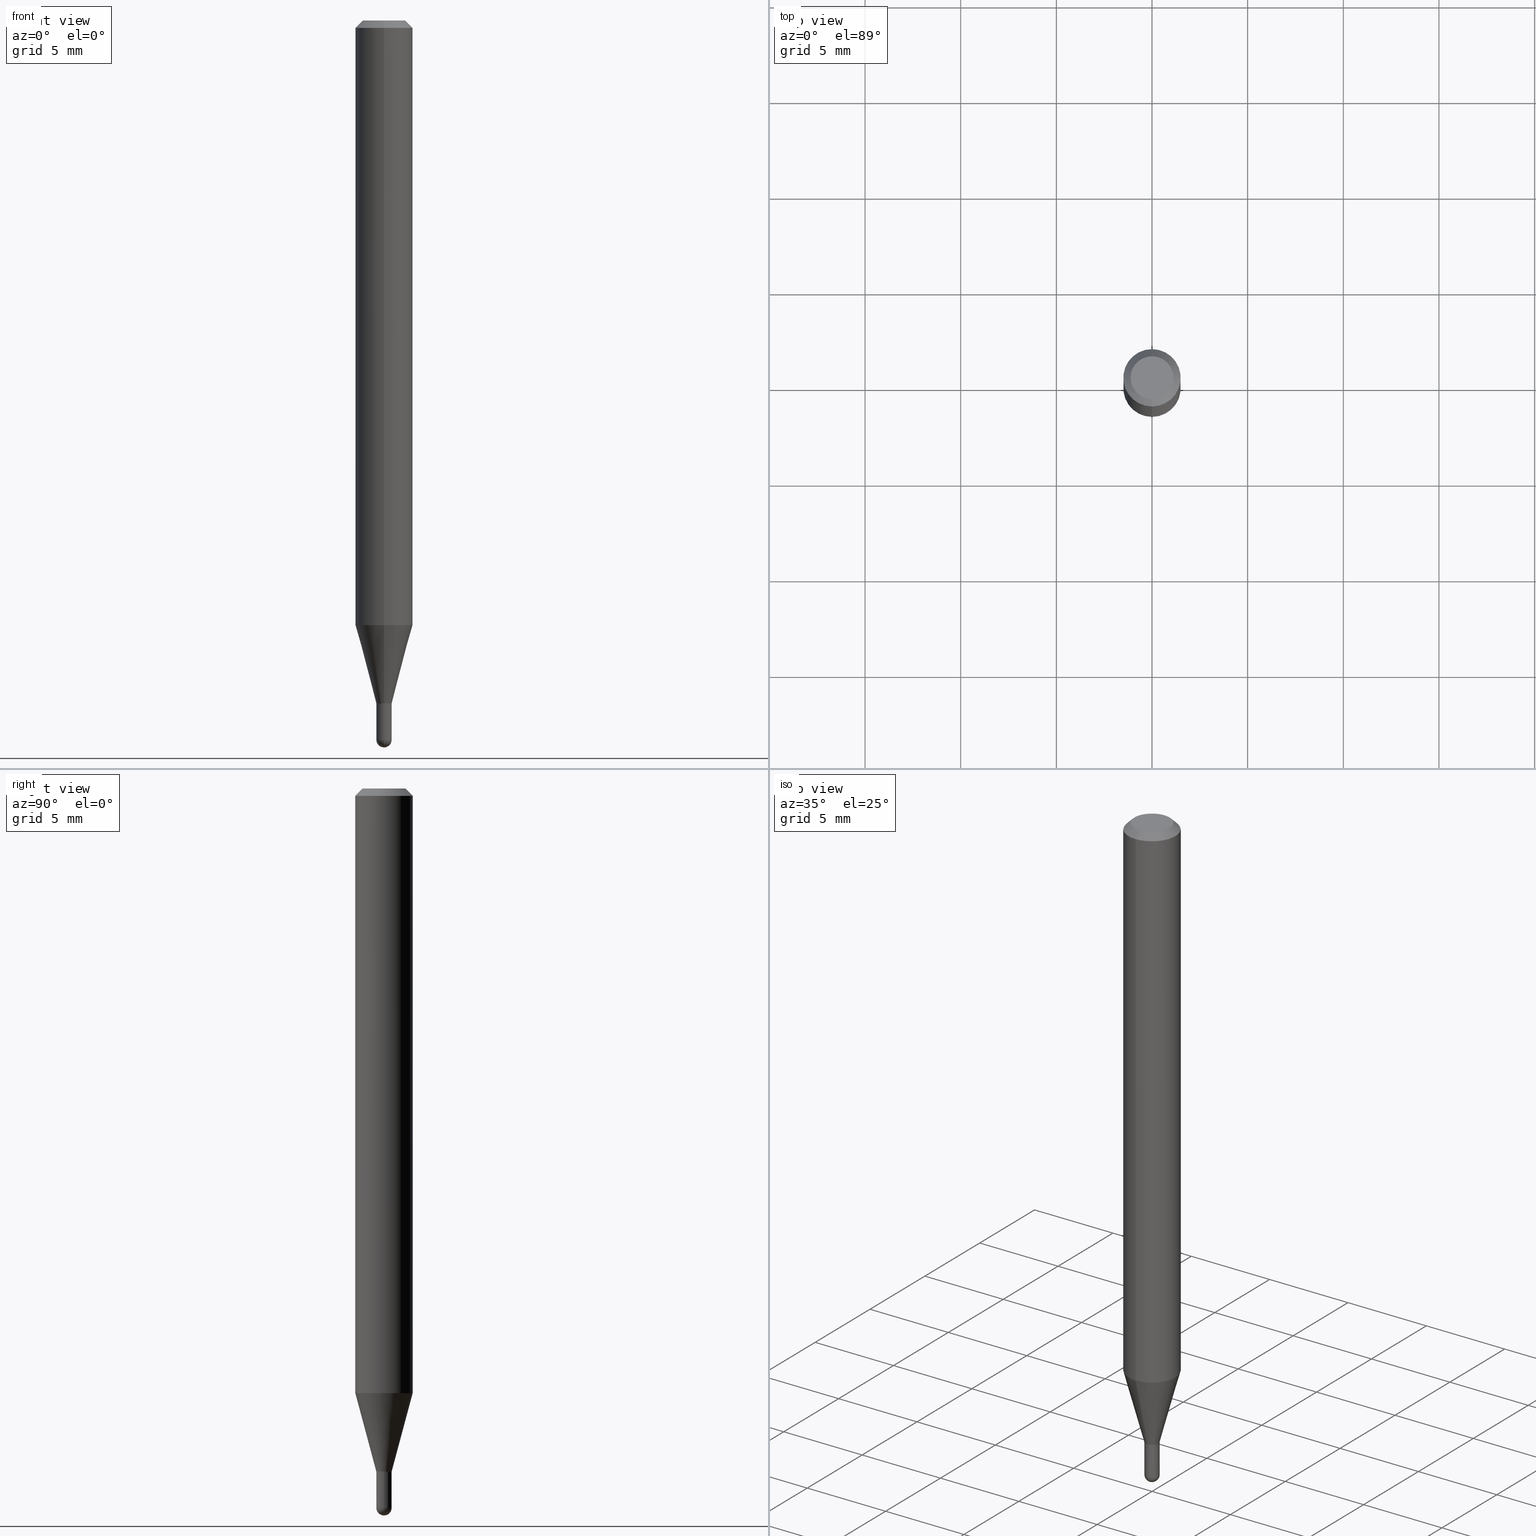
[diagram: canonical four-view strip — front | top / right | iso, engineering-drawing reading convention]
A machine part, canonical four-view strip (front | top / right | iso — engineering-drawing reading convention). The complete STEP part file that produces these views, byte-faithful:
ISO-10303-21;
HEADER;
FILE_DESCRIPTION (( 'STEP AP203' ),
    '1' );
FILE_NAME ('05015.STEP',
    '2024-03-08T20:47:11',
    ( '' ),
    ( '' ),
    'SwSTEP 2.0',
    'SolidWorks 2023',
    '' );
FILE_SCHEMA (( 'CONFIG_CONTROL_DESIGN' ));
ENDSEC;

DATA;
#1 = AXIS2_PLACEMENT_3D ( 'NONE', #83, #476, #242 ) ;
#2 = DIRECTION ( 'NONE',  ( -2.445466752382438032E-29, 3.491484280005505170E-15, 1.000000000000000000 ) ) ;
#3 =( GEOMETRIC_REPRESENTATION_CONTEXT ( 3 ) GLOBAL_UNCERTAINTY_ASSIGNED_CONTEXT ( ( #366 ) ) GLOBAL_UNIT_ASSIGNED_CONTEXT ( ( #217, #403, #254 ) ) REPRESENTATION_CONTEXT ( 'NONE', 'WORKASPACE' ) );
#4 = DIRECTION ( 'NONE',  ( -6.982962677686265922E-15, -1.000000000000000000, 0.000000000000000000 ) ) ;
#5 = EDGE_CURVE ( 'NONE', #151, #24, #291, .T. ) ;
#6 = ORIENTED_EDGE ( 'NONE', *, *, #46, .F. ) ;
#7 = PRODUCT ( '05015', '05015', '', ( #58 ) ) ;
#8 = ADVANCED_FACE ( 'NONE', ( #79 ), #278, .F. ) ;
#9 = EDGE_LOOP ( 'NONE', ( #344, #272, #6, #382 ) ) ;
#10 = AXIS2_PLACEMENT_3D ( 'NONE', #398, #441, #200 ) ;
#11 = AXIS2_PLACEMENT_3D ( 'NONE', #389, #421, #228 ) ;
#12 = DIRECTION ( 'NONE',  ( -2.445468806185136597E-29, 3.491481338843145583E-15, 1.000000000000000000 ) ) ;
#13 = APPLICATION_PROTOCOL_DEFINITION ( 'international standard', 'config_control_design', 1994, #467 ) ;
#14 = DIRECTION ( 'NONE',  ( -2.445466752382438312E-29, 3.491484280005505565E-15, 1.000000000000000000 ) ) ;
#15 = EDGE_CURVE ( 'NONE', #334, #320, #116, .T. ) ;
#16 = PERSON_AND_ORGANIZATION_ROLE ( 'design_owner' ) ;
#17 = ORIENTED_EDGE ( 'NONE', *, *, #36, .F. ) ;
#18 = FACE_OUTER_BOUND ( 'NONE', #208, .T. ) ;
#19 = DIRECTION ( 'NONE',  ( -6.982962677686265922E-15, -1.000000000000000000, 0.000000000000000000 ) ) ;
#20 = CONICAL_SURFACE ( 'NONE', #305, 0.05904999999999999832, 0.7853981633974483900 ) ;
#21 = SECURITY_CLASSIFICATION ( '', '', #426 ) ;
#22 = DIRECTION ( 'NONE',  ( 1.839019923739650802E-15, 0.2588190451025320638, 0.9659258262890650926 ) ) ;
#23 = DIRECTION ( 'NONE',  ( -2.445468806185136597E-29, 3.491481338843145583E-15, 1.000000000000000000 ) ) ;
#24 = VERTEX_POINT ( 'NONE', #240 ) ;
#25 = CC_DESIGN_DATE_AND_TIME_ASSIGNMENT ( #211, #91, ( #201 ) ) ;
#26 = DIRECTION ( 'NONE',  ( -6.982962677686265133E-15, -1.000000000000000000, 3.491484280005504776E-15 ) ) ;
#27 = DIRECTION ( 'NONE',  ( 1.000000000000000000, -6.982962677686284854E-15, 0.000000000000000000 ) ) ;
#28 = CARTESIAN_POINT ( 'NONE',  ( 0.01575000000000000358, -5.141118984413060264E-15, -1.480350000000000055 ) ) ;
#29 = CIRCLE ( 'NONE', #458, 0.04404999999999999888 ) ;
#30 = DIRECTION ( 'NONE',  ( -6.982962677686265922E-15, -1.000000000000000000, 3.505890868245046092E-15 ) ) ;
#31 = COORDINATED_UNIVERSAL_TIME_OFFSET ( 5, 0, .BEHIND. ) ;
#32 = EDGE_LOOP ( 'NONE', ( #247, #123, #141, #45 ) ) ;
#33 = DIRECTION ( 'NONE',  ( -6.982962677686265922E-15, -1.000000000000000000, 0.000000000000000000 ) ) ;
#34 = VERTEX_POINT ( 'NONE', #44 ) ;
#35 = FACE_OUTER_BOUND ( 'NONE', #185, .T. ) ;
#36 = EDGE_CURVE ( 'NONE', #98, #224, #473, .T. ) ;
#37 = AXIS2_PLACEMENT_3D ( 'NONE', #239, #236, #356 ) ;
#38 = FACE_OUTER_BOUND ( 'NONE', #61, .T. ) ;
#39 = VECTOR ( 'NONE', #502, 39.37007874015748143 ) ;
#40 = PLANE ( 'NONE',  #139 ) ;
#41 = ORIENTED_EDGE ( 'NONE', *, *, #248, .F. ) ;
#42 = ORIENTED_EDGE ( 'NONE', *, *, #430, .T. ) ;
#43 = VECTOR ( 'NONE', #424, 39.37007874015748143 ) ;
#44 = CARTESIAN_POINT ( 'NONE',  ( -9.636488495203536860E-17, -0.01380000000000485873, -1.413100000000000023 ) ) ;
#45 = ORIENTED_EDGE ( 'NONE', *, *, #56, .F. ) ;
#46 = EDGE_CURVE ( 'NONE', #214, #295, #451, .T. ) ;
#47 = EDGE_LOOP ( 'NONE', ( #41, #311, #167, #106 ) ) ;
#48 = CIRCLE ( 'NONE', #138, 0.01575000000000000358 ) ;
#49 = APPROVAL_DATE_TIME ( #287, #105 ) ;
#50 = AXIS2_PLACEMENT_3D ( 'NONE', #89, #488, #294 ) ;
#51 = FACE_OUTER_BOUND ( 'NONE', #154, .T. ) ;
#52 = CARTESIAN_POINT ( 'NONE',  ( -4.123439461173739834E-16, -0.05904999999999999832, 2.061721467343250858E-16 ) ) ;
#53 = APPROVAL_STATUS ( 'not_yet_approved' ) ;
#54 = CYLINDRICAL_SURFACE ( 'NONE', #230, 0.01380000000000006048 ) ;
#55 = ORIENTED_EDGE ( 'NONE', *, *, #415, .F. ) ;
#56 = EDGE_CURVE ( 'NONE', #34, #144, #468, .T. ) ;
#57 = DIRECTION ( 'NONE',  ( -2.445466752382438032E-29, 3.491484280005505170E-15, 1.000000000000000000 ) ) ;
#58 = MECHANICAL_CONTEXT ( 'NONE', #467, 'mechanical' ) ;
#59 = ORIENTED_EDGE ( 'NONE', *, *, #408, .F. ) ;
#60 = CARTESIAN_POINT ( 'NONE',  ( -4.051124067684085231E-16, -0.05905000000000005383, -0.01499999999999987454 ) ) ;
#61 = EDGE_LOOP ( 'NONE', ( #149, #67, #396, #302 ) ) ;
#62 = EDGE_CURVE ( 'NONE', #182, #34, #328, .T. ) ;
#63 = CARTESIAN_POINT ( 'NONE',  ( 4.195754854663697655E-16, 0.05904999999999994975, -0.01500000000000028741 ) ) ;
#64 = AXIS2_PLACEMENT_3D ( 'NONE', #330, #12, #477 ) ;
#65 = FACE_OUTER_BOUND ( 'NONE', #342, .T. ) ;
#66 = CC_DESIGN_PERSON_AND_ORGANIZATION_ASSIGNMENT ( #498, #97, ( #198 ) ) ;
#67 = ORIENTED_EDGE ( 'NONE', *, *, #408, .T. ) ;
#68 = CARTESIAN_POINT ( 'NONE',  ( 4.195754854663694204E-16, 0.05904999999999564764, -1.244224700957513807 ) ) ;
#69 = DATE_AND_TIME ( #72, #506 ) ;
#70 = EDGE_CURVE ( 'NONE', #268, #368, #221, .T. ) ;
#71 = CARTESIAN_POINT ( 'NONE',  ( 3.618802860330709271E-29, -5.170543218665107732E-15, -1.480350000000000055 ) ) ;
#72 = CALENDAR_DATE ( 2024, 8, 3 ) ;
#73 = ORIENTED_EDGE ( 'NONE', *, *, #275, .F. ) ;
#74 = DIRECTION ( 'NONE',  ( -2.445466752382438032E-29, 3.491484280005505170E-15, 1.000000000000000000 ) ) ;
#75 = ORIENTED_EDGE ( 'NONE', *, *, #275, .T. ) ;
#76 = EDGE_CURVE ( 'NONE', #276, #161, #347, .T. ) ;
#77 = CARTESIAN_POINT ( 'NONE',  ( 0.000000000000000000, 0.000000000000000000, 0.000000000000000000 ) ) ;
#78 = EDGE_CURVE ( 'NONE', #24, #151, #29, .T. ) ;
#79 = FACE_OUTER_BOUND ( 'NONE', #32, .T. ) ;
#80 = AXIS2_PLACEMENT_3D ( 'NONE', #445, #372, #481 ) ;
#81 = DIRECTION ( 'NONE',  ( -2.445466752382438312E-29, 3.491484280005505565E-15, 1.000000000000000000 ) ) ;
#82 = EDGE_CURVE ( 'NONE', #224, #327, #317, .T. ) ;
#83 = CARTESIAN_POINT ( 'NONE',  ( 3.620149747236166990E-29, -5.168614399956450325E-15, -1.480350000000000055 ) ) ;
#84 = DIRECTION ( 'NONE',  ( -6.982962677686265922E-15, -1.000000000000000000, 0.000000000000000000 ) ) ;
#85 = CARTESIAN_POINT ( 'NONE',  ( 0.000000000000000000, 0.000000000000000000, 0.000000000000000000 ) ) ;
#86 = ORIENTED_EDGE ( 'NONE', *, *, #349, .F. ) ;
#87 = AXIS2_PLACEMENT_3D ( 'NONE', #145, #453, #187 ) ;
#88 = LINE ( 'NONE', #206, #213 ) ;
#89 = CARTESIAN_POINT ( 'NONE',  ( 3.455199974441146854E-29, -4.933118139219779014E-15, -1.412900000000000045 ) ) ;
#90 = CARTESIAN_POINT ( 'NONE',  ( -9.287340361319278055E-17, -0.01330000000000493461, -1.413400000000000212 ) ) ;
#91 = DATE_TIME_ROLE ( 'creation_date' ) ;
#92 = DIRECTION ( 'NONE',  ( -2.445466752382438032E-29, 3.491484280005505170E-15, 1.000000000000000000 ) ) ;
#93 = LOCAL_TIME ( 15, 47, 11.00000000000000000, #184 ) ;
#94 = CARTESIAN_POINT ( 'NONE',  ( -9.636488495203536860E-17, -0.01380000000000485873, -1.413100000000000023 ) ) ;
#95 = ORIENTED_EDGE ( 'NONE', *, *, #157, .T. ) ;
#96 = DIRECTION ( 'NONE',  ( -2.445466752382438032E-29, 3.491484280005505170E-15, 1.000000000000000000 ) ) ;
#97 = PERSON_AND_ORGANIZATION_ROLE ( 'creator' ) ;
#98 = VERTEX_POINT ( 'NONE', #90 ) ;
#99 = CARTESIAN_POINT ( 'NONE',  ( 4.195754854663390985E-16, 0.05904999999999999832, -2.061721467343250858E-16 ) ) ;
#100 = DATE_TIME_ROLE ( 'classification_date' ) ;
#101 = ORIENTED_EDGE ( 'NONE', *, *, #501, .T. ) ;
#102 = PERSON_AND_ORGANIZATION_ROLE ( 'classification_officer' ) ;
#103 = ORIENTED_EDGE ( 'NONE', *, *, #171, .T. ) ;
#104 = CARTESIAN_POINT ( 'NONE',  ( 0.000000000000000000, 0.000000000000000000, 0.000000000000000000 ) ) ;
#105 = APPROVAL ( #53, 'UNSPECIFIED' ) ;
#106 = ORIENTED_EDGE ( 'NONE', *, *, #252, .F. ) ;
#107 = DIRECTION ( 'NONE',  ( -6.982962677686265922E-15, -1.000000000000000000, 3.491484280005505565E-15 ) ) ;
#108 = ORIENTED_EDGE ( 'NONE', *, *, #56, .T. ) ;
#109 = CIRCLE ( 'NONE', #432, 0.01574999999999998276 ) ;
#110 = CARTESIAN_POINT ( 'NONE',  ( 3.656645550575395810E-29, -5.226498459106215376E-15, -1.496099999999999985 ) ) ;
#111 = DIRECTION ( 'NONE',  ( -2.445468806185136597E-29, 3.491481338843145583E-15, 1.000000000000000000 ) ) ;
#112 = EDGE_CURVE ( 'NONE', #24, #320, #88, .T. ) ;
#113 = ORIENTED_EDGE ( 'NONE', *, *, #70, .F. ) ;
#114 = CC_DESIGN_PERSON_AND_ORGANIZATION_ASSIGNMENT ( #455, #270, ( #198 ) ) ;
#115 = DIRECTION ( 'NONE',  ( -2.445466752382438032E-29, 3.491484280005505170E-15, 1.000000000000000000 ) ) ;
#116 = CIRCLE ( 'NONE', #189, 0.05904999999999999832 ) ;
#117 = ORIENTED_EDGE ( 'NONE', *, *, #5, .T. ) ;
#118 = ADVANCED_FACE ( 'NONE', ( #336 ), #251, .F. ) ;
#119 = AXIS2_PLACEMENT_3D ( 'NONE', #510, #23, #27 ) ;
#120 = ORIENTED_EDGE ( 'NONE', *, *, #112, .T. ) ;
#121 = EDGE_CURVE ( 'NONE', #214, #268, #409, .T. ) ;
#122 = LINE ( 'NONE', #52, #359 ) ;
#123 = ORIENTED_EDGE ( 'NONE', *, *, #186, .T. ) ;
#124 = DIRECTION ( 'NONE',  ( -2.445468806185136597E-29, 3.491481338843145583E-15, 1.000000000000000000 ) ) ;
#125 = AXIS2_PLACEMENT_3D ( 'NONE', #487, #57, #84 ) ;
#126 = COORDINATED_UNIVERSAL_TIME_OFFSET ( 5, 0, .BEHIND. ) ;
#127 = CC_DESIGN_APPROVAL ( #105, ( #201 ) ) ;
#128 = FACE_OUTER_BOUND ( 'NONE', #460, .T. ) ;
#129 = PERSON_AND_ORGANIZATION_ROLE ( 'creator' ) ;
#130 = DIRECTION ( 'NONE',  ( 5.024295867788190974E-15, 0.7071067811865681119, 0.7071067811865270336 ) ) ;
#131 = DIRECTION ( 'NONE',  ( -6.982962677686265133E-15, -1.000000000000000000, 0.000000000000000000 ) ) ;
#132 = CARTESIAN_POINT ( 'NONE',  ( 3.042710138684580835E-29, -4.344190984187709840E-15, -1.244224700957513585 ) ) ;
#133 = AXIS2_PLACEMENT_3D ( 'NONE', #158, #111, #318 ) ;
#134 = ADVANCED_FACE ( 'NONE', ( #51 ), #364, .T. ) ;
#135 = LINE ( 'NONE', #246, #238 ) ;
#136 = ORIENTED_EDGE ( 'NONE', *, *, #121, .F. ) ;
#137 = AXIS2_PLACEMENT_3D ( 'NONE', #132, #92, #172 ) ;
#138 = AXIS2_PLACEMENT_3D ( 'NONE', #216, #448, #168 ) ;
#139 = AXIS2_PLACEMENT_3D ( 'NONE', #466, #351, #194 ) ;
#140 = LINE ( 'NONE', #99, #39 ) ;
#141 = ORIENTED_EDGE ( 'NONE', *, *, #479, .T. ) ;
#142 = DIRECTION ( 'NONE',  ( 1.000000000000000000, -6.982962677686286432E-15, 0.000000000000000000 ) ) ;
#143 = SHAPE_DEFINITION_REPRESENTATION ( #471, #322 ) ;
#144 = VERTEX_POINT ( 'NONE', #205 ) ;
#145 = CARTESIAN_POINT ( 'NONE',  ( 3.455689067791622925E-29, -4.933816436075779894E-15, -1.413100000000000023 ) ) ;
#146 = ORIENTED_EDGE ( 'NONE', *, *, #76, .T. ) ;
#147 = AXIS2_PLACEMENT_3D ( 'NONE', #265, #223, #142 ) ;
#148 = DIRECTION ( 'NONE',  ( -6.982962677686265922E-15, -1.000000000000000000, 0.000000000000000000 ) ) ;
#149 = ORIENTED_EDGE ( 'NONE', *, *, #5, .F. ) ;
#150 = CARTESIAN_POINT ( 'NONE',  ( 3.668200128573676386E-31, -5.237226420008286401E-17, -0.01500000000000008098 ) ) ;
#151 = VERTEX_POINT ( 'NONE', #285 ) ;
#152 = CARTESIAN_POINT ( 'NONE',  ( 0.01575000000000000011, -1.099816621735586938E-16, 7.679978421878599434E-31 ) ) ;
#153 = CARTESIAN_POINT ( 'NONE',  ( 3.456422707817337873E-29, -4.934863881359783185E-15, -1.413400000000000212 ) ) ;
#154 = EDGE_LOOP ( 'NONE', ( #42, #499, #290, #55, #146 ) ) ;
#155 = APPROVAL ( #267, 'UNSPECIFIED' ) ;
#156 = DIRECTION ( 'NONE',  ( -6.982962677686265133E-15, -1.000000000000000000, 3.491484280005504776E-15 ) ) ;
#157 = EDGE_CURVE ( 'NONE', #295, #276, #48, .T. ) ;
#158 = CARTESIAN_POINT ( 'NONE',  ( 3.620149747236166990E-29, -5.168614399956450325E-15, -1.480350000000000055 ) ) ;
#159 = AXIS2_PLACEMENT_3D ( 'NONE', #153, #115, #4 ) ;
#160 = ADVANCED_FACE ( 'NONE', ( #405 ), #54, .F. ) ;
#161 = VERTEX_POINT ( 'NONE', #362 ) ;
#162 = CC_DESIGN_SECURITY_CLASSIFICATION ( #21, ( #198 ) ) ;
#163 = CARTESIAN_POINT ( 'NONE',  ( 3.456422707817337873E-29, -4.934863881359783185E-15, -1.413400000000000212 ) ) ;
#164 = PERSON_AND_ORGANIZATION ( #298, #370 ) ;
#165 = DIRECTION ( 'NONE',  ( 2.445466752382437471E-29, -3.491484280005505565E-15, -1.000000000000000000 ) ) ;
#166 = COORDINATED_UNIVERSAL_TIME_OFFSET ( 5, 0, .BEHIND. ) ;
#167 = ORIENTED_EDGE ( 'NONE', *, *, #266, .T. ) ;
#168 = DIRECTION ( 'NONE',  ( 1.000000000000000000, -6.982962677686284854E-15, 0.000000000000000000 ) ) ;
#169 = DIRECTION ( 'NONE',  ( 0.000000000000000000, 0.000000000000000000, 1.000000000000000000 ) ) ;
#170 = CC_DESIGN_APPROVAL ( #155, ( #198 ) ) ;
#171 = EDGE_CURVE ( 'NONE', #258, #334, #122, .T. ) ;
#172 = DIRECTION ( 'NONE',  ( -6.982962677686265922E-15, -1.000000000000000000, 4.626330217890369336E-15 ) ) ;
#173 = FACE_OUTER_BOUND ( 'NONE', #9, .T. ) ;
#174 = ORIENTED_EDGE ( 'NONE', *, *, #82, .T. ) ;
#175 = DIRECTION ( 'NONE',  ( -2.445466752382438312E-29, 3.491484280005505565E-15, 1.000000000000000000 ) ) ;
#176 = LENGTH_MEASURE_WITH_UNIT ( LENGTH_MEASURE( 0.02539999999999999897 ), #491 );
#177 = CYLINDRICAL_SURFACE ( 'NONE', #404, 0.05904999999999999832 ) ;
#178 = VECTOR ( 'NONE', #130, 39.37007874015748143 ) ;
#179 = CIRCLE ( 'NONE', #338, 0.05904999999999999832 ) ;
#180 = DIRECTION ( 'NONE',  ( -2.445466752382438032E-29, 3.491484280005505170E-15, 1.000000000000000000 ) ) ;
#181 = PERSON_AND_ORGANIZATION ( #298, #370 ) ;
#182 = VERTEX_POINT ( 'NONE', #323 ) ;
#183 = CYLINDRICAL_SURFACE ( 'NONE', #438, 0.05904999999999999832 ) ;
#184 = COORDINATED_UNIVERSAL_TIME_OFFSET ( 5, 0, .BEHIND. ) ;
#185 = EDGE_LOOP ( 'NONE', ( #86, #234, #103, #73 ) ) ;
#186 = EDGE_CURVE ( 'NONE', #182, #327, #452, .T. ) ;
#187 = DIRECTION ( 'NONE',  ( -6.982962677686265922E-15, -1.000000000000000000, 0.000000000000000000 ) ) ;
#188 = EDGE_LOOP ( 'NONE', ( #59, #220, #120, #75 ) ) ;
#189 = AXIS2_PLACEMENT_3D ( 'NONE', #435, #352, #355 ) ;
#190 = LOCAL_TIME ( 15, 47, 11.00000000000000000, #126 ) ;
#191 = DIRECTION ( 'NONE',  ( -6.982962677686265922E-15, -1.000000000000000000, 0.000000000000000000 ) ) ;
#192 = PERSON_AND_ORGANIZATION ( #298, #370 ) ;
#193 = ORIENTED_EDGE ( 'NONE', *, *, #415, .T. ) ;
#194 = DIRECTION ( 'NONE',  ( -1.000000000000000000, 6.982962677686265922E-15, -4.876176775795935793E-29 ) ) ;
#195 = ADVANCED_FACE ( 'NONE', ( #18 ), #292, .T. ) ;
#196 = PRODUCT_RELATED_PRODUCT_CATEGORY ( 'detail', '', ( #7 ) ) ;
#197 = CARTESIAN_POINT ( 'NONE',  ( 3.427569078749087191E-29, -4.893660244522552864E-15, -1.401599999999999957 ) ) ;
#198 = PRODUCT_DEFINITION_FORMATION_WITH_SPECIFIED_SOURCE ( 'ANY', '', #7, .NOT_KNOWN. ) ;
#199 = ORIENTED_EDGE ( 'NONE', *, *, #186, .F. ) ;
#200 = DIRECTION ( 'NONE',  ( -6.982962677686265133E-15, -1.000000000000000000, 3.491484280005504776E-15 ) ) ;
#201 = PRODUCT_DEFINITION ( 'UNKNOWN', '', #198, #509 ) ;
#202 = DIRECTION ( 'NONE',  ( 1.000000000000000000, -6.982962677686286432E-15, 0.000000000000000000 ) ) ;
#203 = VECTOR ( 'NONE', #81, 39.37007874015748143 ) ;
#204 = AXIS2_PLACEMENT_3D ( 'NONE', #150, #505, #300 ) ;
#205 = CARTESIAN_POINT ( 'NONE',  ( -9.636488495203762425E-17, -0.01380000000000517792, -1.412900000000000045 ) ) ;
#206 = CARTESIAN_POINT ( 'NONE',  ( 4.123439461173743285E-16, 0.05904999999999994975, -0.01500000000000028741 ) ) ;
#207 = APPLICATION_PROTOCOL_DEFINITION ( 'international standard', 'config_control_design', 1994, #496 ) ;
#208 = EDGE_LOOP ( 'NONE', ( #136, #503, #95, #193, #113 ) ) ;
#209 = CARTESIAN_POINT ( 'NONE',  ( 9.805489753489424308E-17, 0.01380000000000006048, -4.818248306407617745E-17 ) ) ;
#210 = CC_DESIGN_PERSON_AND_ORGANIZATION_ASSIGNMENT ( #478, #129, ( #201 ) ) ;
#211 = DATE_AND_TIME ( #447, #190 ) ;
#212 = CARTESIAN_POINT ( 'NONE',  ( 9.627854069552881185E-17, 0.01329999999999506577, -1.413400000000000212 ) ) ;
#213 = VECTOR ( 'NONE', #444, 39.37007874015748143 ) ;
#214 = VERTEX_POINT ( 'NONE', #486 ) ;
#215 = AXIS2_PLACEMENT_3D ( 'NONE', #250, #365, #19 ) ;
#216 = CARTESIAN_POINT ( 'NONE',  ( 3.620149747236166990E-29, -5.168614399956450325E-15, -1.480350000000000055 ) ) ;
#217 =( CONVERSION_BASED_UNIT ( 'INCH', #176 ) LENGTH_UNIT ( ) NAMED_UNIT ( #500 ) );
#218 = CARTESIAN_POINT ( 'NONE',  ( -4.123439461173736383E-16, -0.05905000000000005383, -0.01499999999999987454 ) ) ;
#219 = PLANE ( 'NONE',  #493 ) ;
#220 = ORIENTED_EDGE ( 'NONE', *, *, #78, .F. ) ;
#221 = CIRCLE ( 'NONE', #437, 0.01575000000000000011 ) ;
#222 = CIRCLE ( 'NONE', #11, 0.01574999999999998276 ) ;
#223 = DIRECTION ( 'NONE',  ( -2.445468806185136597E-29, 3.491481338843145583E-15, 1.000000000000000000 ) ) ;
#224 = VERTEX_POINT ( 'NONE', #212 ) ;
#225 = DIRECTION ( 'NONE',  ( -2.445466752382438032E-29, 3.491484280005505170E-15, 1.000000000000000000 ) ) ;
#226 = COORDINATED_UNIVERSAL_TIME_OFFSET ( 5, 0, .BEHIND. ) ;
#227 = ORIENTED_EDGE ( 'NONE', *, *, #266, .F. ) ;
#228 = DIRECTION ( 'NONE',  ( 7.105427357601000281E-15, 1.000000000000000000, 0.000000000000000000 ) ) ;
#229 = ORIENTED_EDGE ( 'NONE', *, *, #171, .F. ) ;
#230 = AXIS2_PLACEMENT_3D ( 'NONE', #367, #325, #26 ) ;
#231 = ADVANCED_FACE ( 'NONE', ( #128 ), #483, .T. ) ;
#232 = CONICAL_SURFACE ( 'NONE', #204, 0.05904999999999999832, 0.7853981633974483900 ) ;
#233 = FACE_OUTER_BOUND ( 'NONE', #315, .T. ) ;
#234 = ORIENTED_EDGE ( 'NONE', *, *, #252, .T. ) ;
#235 = ORIENTED_EDGE ( 'NONE', *, *, #299, .F. ) ;
#236 = DIRECTION ( 'NONE',  ( -2.445466752382438032E-29, 3.491484280005505170E-15, 1.000000000000000000 ) ) ;
#237 = AXIS2_PLACEMENT_3D ( 'NONE', #77, #274, #434 ) ;
#238 = VECTOR ( 'NONE', #333, 39.37007874015748143 ) ;
#239 = CARTESIAN_POINT ( 'NONE',  ( 3.455689067791622925E-29, -4.933816436075779894E-15, -1.413100000000000023 ) ) ;
#240 = CARTESIAN_POINT ( 'NONE',  ( 3.599717260347271507E-16, 0.04404999999999999888, -2.343019103179918348E-16 ) ) ;
#241 = ADVANCED_FACE ( 'NONE', ( #281 ), #20, .T. ) ;
#242 = DIRECTION ( 'NONE',  ( 1.000000000000000000, -6.982962677686284854E-15, 0.000000000000000000 ) ) ;
#243 = MANIFOLD_SOLID_BREP ( 'Body-Move/Copy2[2]', #390 ) ;
#244 = CIRCLE ( 'NONE', #296, 0.01380000000000019926 ) ;
#245 = CARTESIAN_POINT ( 'NONE',  ( 3.075995059520799729E-16, 0.04404999999999999888, -1.940508964261171454E-16 ) ) ;
#246 = CARTESIAN_POINT ( 'NONE',  ( -9.287340361319278055E-17, -0.01330000000000493461, -1.413400000000000212 ) ) ;
#247 = ORIENTED_EDGE ( 'NONE', *, *, #62, .F. ) ;
#248 = EDGE_CURVE ( 'NONE', #182, #353, #446, .T. ) ;
#249 = CARTESIAN_POINT ( 'NONE',  ( -0.01575000000000000011, 1.119104808822157801E-16, -7.747322767151476634E-31 ) ) ;
#250 = CARTESIAN_POINT ( 'NONE',  ( 3.455689067791622925E-29, -4.933816436075779894E-15, -1.413100000000000023 ) ) ;
#251 = PLANE ( 'NONE',  #504 ) ;
#252 = EDGE_CURVE ( 'NONE', #353, #258, #492, .T. ) ;
#253 = CARTESIAN_POINT ( 'NONE',  ( -4.123439461173436122E-16, -0.05905000000000434207, -1.244224700957513363 ) ) ;
#254 =( NAMED_UNIT ( * ) SI_UNIT ( $, .STERADIAN. ) SOLID_ANGLE_UNIT ( ) );
#255 = CONICAL_SURFACE ( 'NONE', #215, 0.01379999999999992344, 0.2617993877991576790 ) ;
#256 = EDGE_CURVE ( 'NONE', #34, #182, #378, .T. ) ;
#257 = CARTESIAN_POINT ( 'NONE',  ( 0.000000000000000000, 0.000000000000000000, 0.000000000000000000 ) ) ;
#258 = VERTEX_POINT ( 'NONE', #253 ) ;
#259 = DIRECTION ( 'NONE',  ( -6.982962677686265922E-15, -1.000000000000000000, 0.000000000000000000 ) ) ;
#260 = APPROVAL_ROLE ( '' ) ;
#261 = EDGE_LOOP ( 'NONE', ( #470, #507, #377, #227 ) ) ;
#262 = CARTESIAN_POINT ( 'NONE',  ( 0.01575000000000000011, -5.003641906696111533E-15, -1.401599999999999957 ) ) ;
#263 = CIRCLE ( 'NONE', #348, 0.05904999999999999832 ) ;
#264 = APPROVAL_PERSON_ORGANIZATION ( #363, #105, #324 ) ;
#265 = CARTESIAN_POINT ( 'NONE',  ( 3.427569078749087191E-29, -4.893660244522552864E-15, -1.401599999999999957 ) ) ;
#266 = EDGE_CURVE ( 'NONE', #34, #258, #489, .T. ) ;
#267 = APPROVAL_STATUS ( 'not_yet_approved' ) ;
#268 = VERTEX_POINT ( 'NONE', #345 ) ;
#269 = CARTESIAN_POINT ( 'NONE',  ( 3.618802860330709271E-29, -5.170543218665107732E-15, -1.480350000000000055 ) ) ;
#270 = PERSON_AND_ORGANIZATION_ROLE ( 'design_supplier' ) ;
#271 = DIRECTION ( 'NONE',  ( -2.445466752382438032E-29, 3.491484280005505170E-15, 1.000000000000000000 ) ) ;
#272 = ORIENTED_EDGE ( 'NONE', *, *, #299, .T. ) ;
#273 = EDGE_LOOP ( 'NONE', ( #199, #436, #108, #101 ) ) ;
#274 = DIRECTION ( 'NONE',  ( -2.445466752382438032E-29, 3.491484280005505170E-15, 1.000000000000000000 ) ) ;
#275 = EDGE_CURVE ( 'NONE', #320, #334, #263, .T. ) ;
#276 = VERTEX_POINT ( 'NONE', #28 ) ;
#277 = CIRCLE ( 'NONE', #147, 0.01575000000000000011 ) ;
#278 = CYLINDRICAL_SURFACE ( 'NONE', #237, 0.01380000000000006048 ) ;
#279 = EDGE_LOOP ( 'NONE', ( #462, #304, #469, #229 ) ) ;
#280 = ADVANCED_FACE ( 'NONE', ( #35 ), #177, .T. ) ;
#281 = FACE_OUTER_BOUND ( 'NONE', #188, .T. ) ;
#282 = DIRECTION ( 'NONE',  ( -2.445466752382438032E-29, 3.491484280005505170E-15, 1.000000000000000000 ) ) ;
#283 = VECTOR ( 'NONE', #14, 39.37007874015748143 ) ;
#284 = CONICAL_SURFACE ( 'NONE', #87, 0.01379999999999992344, 0.2617993877991576790 ) ;
#285 = CARTESIAN_POINT ( 'NONE',  ( -3.536586717851222218E-16, -0.04404999999999999888, 7.329785475049316338E-17 ) ) ;
#286 = DIRECTION ( 'NONE',  ( -6.982962677686265922E-15, -1.000000000000000000, 0.000000000000000000 ) ) ;
#287 = DATE_AND_TIME ( #326, #354 ) ;
#288 = DIRECTION ( 'NONE',  ( -2.445466752382438032E-29, 3.491484280005505170E-15, 1.000000000000000000 ) ) ;
#289 = EDGE_CURVE ( 'NONE', #224, #98, #433, .T. ) ;
#290 = ORIENTED_EDGE ( 'NONE', *, *, #321, .F. ) ;
#291 = CIRCLE ( 'NONE', #10, 0.04404999999999999888 ) ;
#292 = CYLINDRICAL_SURFACE ( 'NONE', #64, 0.01575000000000000011 ) ;
#293 = AXIS2_PLACEMENT_3D ( 'NONE', #163, #288, #286 ) ;
#294 = DIRECTION ( 'NONE',  ( -6.982962677686265133E-15, -1.000000000000000000, 0.000000000000000000 ) ) ;
#295 = VERTEX_POINT ( 'NONE', #497 ) ;
#296 = AXIS2_PLACEMENT_3D ( 'NONE', #450, #282, #131 ) ;
#297 = FACE_OUTER_BOUND ( 'NONE', #47, .T. ) ;
#298 = PERSON ( 'UNSPECIFIED', 'UNSPECIFIED', 'UNSPECIFIED', ('UNSPECIFIED'), ('UNSPECIFIED'), ('UNSPECIFIED') ) ;
#299 = EDGE_CURVE ( 'NONE', #429, #295, #109, .T. ) ;
#300 = DIRECTION ( 'NONE',  ( 6.982962677686265922E-15, 1.000000000000000000, -3.505890868245046092E-15 ) ) ;
#301 = APPROVAL_ROLE ( '' ) ;
#302 = ORIENTED_EDGE ( 'NONE', *, *, #112, .F. ) ;
#303 = FACE_OUTER_BOUND ( 'NONE', #387, .T. ) ;
#304 = ORIENTED_EDGE ( 'NONE', *, *, #349, .T. ) ;
#305 = AXIS2_PLACEMENT_3D ( 'NONE', #332, #442, #373 ) ;
#306 = CIRCLE ( 'NONE', #119, 0.01575000000000000358 ) ;
#307 = DIRECTION ( 'NONE',  ( -1.000000000000000000, 6.982962677686265922E-15, -4.883557194083112340E-29 ) ) ;
#308 = APPROVAL_DATE_TIME ( #339, #440 ) ;
#309 = ORIENTED_EDGE ( 'NONE', *, *, #321, .T. ) ;
#310 = FACE_OUTER_BOUND ( 'NONE', #279, .T. ) ;
#311 = ORIENTED_EDGE ( 'NONE', *, *, #62, .T. ) ;
#312 = CARTESIAN_POINT ( 'NONE',  ( 3.042710138684580835E-29, -4.344190984187709840E-15, -1.244224700957513585 ) ) ;
#313 = CARTESIAN_POINT ( 'NONE',  ( 1.968650324445262626E-45, -2.810715645155272139E-31, -8.050202778374932957E-17 ) ) ;
#314 = AXIS2_PLACEMENT_3D ( 'NONE', #85, #169, #331 ) ;
#315 = EDGE_LOOP ( 'NONE', ( #309, #427 ) ) ;
#316 = ADVANCED_FACE ( 'NONE', ( #419 ), #422, .T. ) ;
#317 = LINE ( 'NONE', #480, #178 ) ;
#318 = DIRECTION ( 'NONE',  ( 1.000000000000000000, -6.982962677686284854E-15, 0.000000000000000000 ) ) ;
#319 = APPROVAL_PERSON_ORGANIZATION ( #192, #155, #301 ) ;
#320 = VERTEX_POINT ( 'NONE', #63 ) ;
#321 = EDGE_CURVE ( 'NONE', #368, #268, #277, .T. ) ;
#322 = ADVANCED_BREP_SHAPE_REPRESENTATION ( '05015', ( #399, #243, #314 ), #3 ) ;
#323 = CARTESIAN_POINT ( 'NONE',  ( 2.588151915006488292E-16, 0.01379999999999498989, -1.413100000000000023 ) ) ;
#324 = APPROVAL_ROLE ( '' ) ;
#325 = DIRECTION ( 'NONE',  ( -2.445466752382438032E-29, 3.491484280005505170E-15, 1.000000000000000000 ) ) ;
#326 = CALENDAR_DATE ( 2024, 8, 3 ) ;
#327 = VERTEX_POINT ( 'NONE', #508 ) ;
#328 = CIRCLE ( 'NONE', #37, 0.01379999999999992344 ) ;
#329 = AXIS2_PLACEMENT_3D ( 'NONE', #340, #454, #33 ) ;
#330 = CARTESIAN_POINT ( 'NONE',  ( 0.000000000000000000, 0.000000000000000000, 0.000000000000000000 ) ) ;
#331 = DIRECTION ( 'NONE',  ( 1.000000000000000000, 0.000000000000000000, 0.000000000000000000 ) ) ;
#332 = CARTESIAN_POINT ( 'NONE',  ( 3.668200128573676386E-31, -5.237226420008286401E-17, -0.01500000000000008098 ) ) ;
#333 = DIRECTION ( 'NONE',  ( -4.937700262164674260E-15, -0.7071067811865632269, 0.7071067811865319186 ) ) ;
#334 = VERTEX_POINT ( 'NONE', #218 ) ;
#335 = ADVANCED_FACE ( 'NONE', ( #38 ), #232, .T. ) ;
#336 = FACE_OUTER_BOUND ( 'NONE', #346, .T. ) ;
#337 = DIRECTION ( 'NONE',  ( -6.982962677686265922E-15, -1.000000000000000000, 3.491484280005505170E-15 ) ) ;
#338 = AXIS2_PLACEMENT_3D ( 'NONE', #312, #74, #431 ) ;
#339 = DATE_AND_TIME ( #376, #93 ) ;
#340 = CARTESIAN_POINT ( 'NONE',  ( 3.456422707817337873E-29, -4.934863881359783185E-15, -1.413400000000000212 ) ) ;
#341 = CALENDAR_DATE ( 2024, 8, 3 ) ;
#342 = EDGE_LOOP ( 'NONE', ( #17, #439 ) ) ;
#343 = DIRECTION ( 'NONE',  ( -6.982962677686265922E-15, -1.000000000000000000, 3.491484280005505170E-15 ) ) ;
#344 = ORIENTED_EDGE ( 'NONE', *, *, #357, .F. ) ;
#345 = CARTESIAN_POINT ( 'NONE',  ( -0.01575000000000000011, -4.919226841357285519E-15, -1.401599999999999957 ) ) ;
#346 = EDGE_LOOP ( 'NONE', ( #393, #117 ) ) ;
#347 = CIRCLE ( 'NONE', #1, 0.01575000000000000358 ) ;
#348 = AXIS2_PLACEMENT_3D ( 'NONE', #459, #96, #30 ) ;
#349 = EDGE_CURVE ( 'NONE', #353, #320, #140, .T. ) ;
#350 = LINE ( 'NONE', #60, #43 ) ;
#351 = DIRECTION ( 'NONE',  ( 2.438088387897960049E-29, -3.491481338843145188E-15, -1.000000000000000000 ) ) ;
#352 = DIRECTION ( 'NONE',  ( -2.445466752382438032E-29, 3.491484280005505170E-15, 1.000000000000000000 ) ) ;
#353 = VERTEX_POINT ( 'NONE', #68 ) ;
#354 = LOCAL_TIME ( 15, 47, 11.00000000000000000, #166 ) ;
#355 = DIRECTION ( 'NONE',  ( -6.982962677686265922E-15, -1.000000000000000000, 3.505890868245046092E-15 ) ) ;
#356 = DIRECTION ( 'NONE',  ( -6.982962677686265922E-15, -1.000000000000000000, 0.000000000000000000 ) ) ;
#357 = EDGE_CURVE ( 'NONE', #429, #161, #222, .T. ) ;
#358 = ORIENTED_EDGE ( 'NONE', *, *, #501, .F. ) ;
#359 = VECTOR ( 'NONE', #175, 39.37007874015748143 ) ;
#360 = VECTOR ( 'NONE', #22, 39.37007874015748854 ) ;
#361 = AXIS2_PLACEMENT_3D ( 'NONE', #494, #180, #259 ) ;
#362 = CARTESIAN_POINT ( 'NONE',  ( 1.119104808822518951E-16, 0.01574999999999482370, -1.480350000000000055 ) ) ;
#363 = PERSON_AND_ORGANIZATION ( #298, #370 ) ;
#364 = CYLINDRICAL_SURFACE ( 'NONE', #474, 0.01575000000000000011 ) ;
#365 = DIRECTION ( 'NONE',  ( -2.445466752382438032E-29, 3.491484280005505170E-15, 1.000000000000000000 ) ) ;
#366 = UNCERTAINTY_MEASURE_WITH_UNIT (LENGTH_MEASURE( 1.000000000000000082E-05 ), #217, 'distance_accuracy_value', 'NONE');
#367 = CARTESIAN_POINT ( 'NONE',  ( 0.000000000000000000, 0.000000000000000000, 0.000000000000000000 ) ) ;
#368 = VERTEX_POINT ( 'NONE', #262 ) ;
#369 = ADVANCED_FACE ( 'NONE', ( #297 ), #284, .T. ) ;
#370 = ORGANIZATION ( 'UNSPECIFIED', 'UNSPECIFIED', '' ) ;
#371 = CARTESIAN_POINT ( 'NONE',  ( 9.805489753492783129E-17, 0.01379999999999498989, -1.413100000000000023 ) ) ;
#372 = DIRECTION ( 'NONE',  ( 1.000000000000000000, -6.982962677686265922E-15, 4.883557194083112901E-29 ) ) ;
#373 = DIRECTION ( 'NONE',  ( 6.982962677686265922E-15, 1.000000000000000000, -3.505890868245046092E-15 ) ) ;
#374 = ADVANCED_FACE ( 'NONE', ( #65 ), #219, .F. ) ;
#375 = LINE ( 'NONE', #152, #380 ) ;
#376 = CALENDAR_DATE ( 2024, 8, 3 ) ;
#377 = ORIENTED_EDGE ( 'NONE', *, *, #418, .F. ) ;
#378 = CIRCLE ( 'NONE', #125, 0.01379999999999992344 ) ;
#379 = DIRECTION ( 'NONE',  ( -2.445466752382437471E-29, 3.491484280005505565E-15, 1.000000000000000000 ) ) ;
#380 = VECTOR ( 'NONE', #392, 39.37007874015748143 ) ;
#381 = APPROVAL_DATE_TIME ( #464, #155 ) ;
#382 = ORIENTED_EDGE ( 'NONE', *, *, #430, .F. ) ;
#383 = CARTESIAN_POINT ( 'NONE',  ( 3.456422707817337873E-29, -4.934863881359783185E-15, -1.413400000000000212 ) ) ;
#384 = ORIENTED_EDGE ( 'NONE', *, *, #76, .F. ) ;
#385 = SPHERICAL_SURFACE ( 'NONE', #397, 0.01574999999999998276 ) ;
#386 = PERSON_AND_ORGANIZATION ( #298, #370 ) ;
#387 = EDGE_LOOP ( 'NONE', ( #235, #495, #384, #472 ) ) ;
#388 = ADVANCED_FACE ( 'NONE', ( #310 ), #183, .T. ) ;
#389 = CARTESIAN_POINT ( 'NONE',  ( 3.618802860330709271E-29, -5.170543218665107732E-15, -1.480350000000000055 ) ) ;
#390 = CLOSED_SHELL ( 'NONE', ( #8, #231, #335, #388, #490, #369, #280, #241, #118, #374, #316, #160 ) ) ;
#391 = CC_DESIGN_APPROVAL ( #440, ( #21 ) ) ;
#392 = DIRECTION ( 'NONE',  ( -2.445468806185136877E-29, 3.491481338843145188E-15, 1.000000000000000000 ) ) ;
#393 = ORIENTED_EDGE ( 'NONE', *, *, #78, .T. ) ;
#394 = CARTESIAN_POINT ( 'NONE',  ( -9.636488495207087967E-17, -0.01380000000000006048, 4.818248306407617745E-17 ) ) ;
#395 = CC_DESIGN_DATE_AND_TIME_ASSIGNMENT ( #69, #100, ( #21 ) ) ;
#396 = ORIENTED_EDGE ( 'NONE', *, *, #15, .T. ) ;
#397 = AXIS2_PLACEMENT_3D ( 'NONE', #269, #428, #191 ) ;
#398 = CARTESIAN_POINT ( 'NONE',  ( 1.968650324445262626E-45, -2.810715645155272139E-31, -8.050202778374932957E-17 ) ) ;
#399 = MANIFOLD_SOLID_BREP ( 'Body-Move/Copy2[1]', #456 ) ;
#400 = DIRECTION ( 'NONE',  ( -2.445468806185136597E-29, 3.491481338843145583E-15, 1.000000000000000000 ) ) ;
#401 = ADVANCED_FACE ( 'NONE', ( #303 ), #385, .T. ) ;
#402 = ORIENTED_EDGE ( 'NONE', *, *, #36, .T. ) ;
#403 =( NAMED_UNIT ( * ) PLANE_ANGLE_UNIT ( ) SI_UNIT ( $, .RADIAN. ) );
#404 = AXIS2_PLACEMENT_3D ( 'NONE', #104, #225, #337 ) ;
#405 = FACE_OUTER_BOUND ( 'NONE', #273, .T. ) ;
#406 = FACE_OUTER_BOUND ( 'NONE', #261, .T. ) ;
#407 = DIRECTION ( 'NONE',  ( 1.000000000000000000, -6.982962677686265922E-15, 4.876176775795936353E-29 ) ) ;
#408 = EDGE_CURVE ( 'NONE', #151, #334, #350, .T. ) ;
#409 = LINE ( 'NONE', #249, #411 ) ;
#410 = SPHERICAL_SURFACE ( 'NONE', #80, 0.01574999999999998276 ) ;
#411 = VECTOR ( 'NONE', #416, 39.37007874015748143 ) ;
#412 = APPROVAL_PERSON_ORGANIZATION ( #181, #440, #260 ) ;
#413 = DIRECTION ( 'NONE',  ( 6.982962677686265922E-15, 1.000000000000000000, -3.491484280005505565E-15 ) ) ;
#414 = EDGE_LOOP ( 'NONE', ( #465, #417, #512, #482 ) ) ;
#415 = EDGE_CURVE ( 'NONE', #276, #368, #375, .T. ) ;
#416 = DIRECTION ( 'NONE',  ( -2.445468806185136877E-29, 3.491481338843145188E-15, 1.000000000000000000 ) ) ;
#417 = ORIENTED_EDGE ( 'NONE', *, *, #289, .T. ) ;
#418 = EDGE_CURVE ( 'NONE', #258, #353, #179, .T. ) ;
#419 = FACE_OUTER_BOUND ( 'NONE', #414, .T. ) ;
#420 = VECTOR ( 'NONE', #463, 39.37007874015748143 ) ;
#421 = DIRECTION ( 'NONE',  ( 1.000000000000000000, -7.105427357601001070E-15, 4.926315508542082329E-29 ) ) ;
#422 = CONICAL_SURFACE ( 'NONE', #361, 0.01330000000000000106, 0.7853981633974739252 ) ;
#423 = APPROVAL_STATUS ( 'not_yet_approved' ) ;
#424 = DIRECTION ( 'NONE',  ( -4.851104656540964275E-15, -0.7071067811865500152, -0.7071067811865450192 ) ) ;
#425 = ADVANCED_FACE ( 'NONE', ( #233 ), #40, .F. ) ;
#426 = SECURITY_CLASSIFICATION_LEVEL ( 'unclassified' ) ;
#427 = ORIENTED_EDGE ( 'NONE', *, *, #70, .T. ) ;
#428 = DIRECTION ( 'NONE',  ( 1.000000000000000000, -6.982962677686265922E-15, 4.883557194083112901E-29 ) ) ;
#429 = VERTEX_POINT ( 'NONE', #110 ) ;
#430 = EDGE_CURVE ( 'NONE', #161, #214, #306, .T. ) ;
#431 = DIRECTION ( 'NONE',  ( -6.982962677686265922E-15, -1.000000000000000000, 4.626330217890369336E-15 ) ) ;
#432 = AXIS2_PLACEMENT_3D ( 'NONE', #71, #307, #148 ) ;
#433 = CIRCLE ( 'NONE', #329, 0.01330000000000000106 ) ;
#434 = DIRECTION ( 'NONE',  ( -6.982962677686265133E-15, -1.000000000000000000, 3.491484280005504776E-15 ) ) ;
#435 = CARTESIAN_POINT ( 'NONE',  ( 3.668200128573676386E-31, -5.237226420008286401E-17, -0.01500000000000008098 ) ) ;
#436 = ORIENTED_EDGE ( 'NONE', *, *, #256, .F. ) ;
#437 = AXIS2_PLACEMENT_3D ( 'NONE', #197, #400, #202 ) ;
#438 = AXIS2_PLACEMENT_3D ( 'NONE', #461, #271, #343 ) ;
#439 = ORIENTED_EDGE ( 'NONE', *, *, #289, .F. ) ;
#440 = APPROVAL ( #423, 'UNSPECIFIED' ) ;
#441 = DIRECTION ( 'NONE',  ( -2.445466752382438032E-29, 3.491484280005505170E-15, 1.000000000000000000 ) ) ;
#442 = DIRECTION ( 'NONE',  ( 2.445466752382438032E-29, -3.491484280005505170E-15, -1.000000000000000000 ) ) ;
#443 = ORIENTED_EDGE ( 'NONE', *, *, #457, .F. ) ;
#444 = DIRECTION ( 'NONE',  ( 4.937700262164548042E-15, 0.7071067811865451302, -0.7071067811865499042 ) ) ;
#445 = CARTESIAN_POINT ( 'NONE',  ( 3.618802860330709271E-29, -5.170543218665107732E-15, -1.480350000000000055 ) ) ;
#446 = LINE ( 'NONE', #371, #360 ) ;
#447 = CALENDAR_DATE ( 2024, 8, 3 ) ;
#448 = DIRECTION ( 'NONE',  ( -2.445468806185136597E-29, 3.491481338843145583E-15, 1.000000000000000000 ) ) ;
#449 = ADVANCED_FACE ( 'NONE', ( #173 ), #410, .T. ) ;
#450 = CARTESIAN_POINT ( 'NONE',  ( 3.455199974441146854E-29, -4.933118139219779014E-15, -1.412900000000000045 ) ) ;
#451 = CIRCLE ( 'NONE', #133, 0.01575000000000000358 ) ;
#452 = LINE ( 'NONE', #209, #283 ) ;
#453 = DIRECTION ( 'NONE',  ( -2.445466752382438032E-29, 3.491484280005505170E-15, 1.000000000000000000 ) ) ;
#454 = DIRECTION ( 'NONE',  ( -2.445466752382438032E-29, 3.491484280005505170E-15, 1.000000000000000000 ) ) ;
#455 = PERSON_AND_ORGANIZATION ( #298, #370 ) ;
#456 = CLOSED_SHELL ( 'NONE', ( #134, #401, #425, #449, #195 ) ) ;
#457 = EDGE_CURVE ( 'NONE', #98, #144, #135, .T. ) ;
#458 = AXIS2_PLACEMENT_3D ( 'NONE', #313, #2, #156 ) ;
#459 = CARTESIAN_POINT ( 'NONE',  ( 3.668200128573676386E-31, -5.237226420008286401E-17, -0.01500000000000008098 ) ) ;
#460 = EDGE_LOOP ( 'NONE', ( #402, #174, #358, #443 ) ) ;
#461 = CARTESIAN_POINT ( 'NONE',  ( 0.000000000000000000, 0.000000000000000000, 0.000000000000000000 ) ) ;
#462 = ORIENTED_EDGE ( 'NONE', *, *, #418, .T. ) ;
#463 = DIRECTION ( 'NONE',  ( -1.807323732225380232E-15, -0.2588190451025253469, 0.9659258262890670910 ) ) ;
#464 = DATE_AND_TIME ( #341, #485 ) ;
#465 = ORIENTED_EDGE ( 'NONE', *, *, #82, .F. ) ;
#466 = CARTESIAN_POINT ( 'NONE',  ( 1.099816621735929723E-16, 0.01574999999999510472, -1.401599999999999957 ) ) ;
#467 = APPLICATION_CONTEXT ( 'configuration controlled 3d designs of mechanical parts and assemblies' ) ;
#468 = LINE ( 'NONE', #394, #203 ) ;
#469 = ORIENTED_EDGE ( 'NONE', *, *, #15, .F. ) ;
#470 = ORIENTED_EDGE ( 'NONE', *, *, #256, .T. ) ;
#471 = PRODUCT_DEFINITION_SHAPE ( 'NONE', 'NONE',  #201 ) ;
#472 = ORIENTED_EDGE ( 'NONE', *, *, #157, .F. ) ;
#473 = CIRCLE ( 'NONE', #159, 0.01330000000000000106 ) ;
#474 = AXIS2_PLACEMENT_3D ( 'NONE', #257, #124, #407 ) ;
#475 = CIRCLE ( 'NONE', #50, 0.01380000000000019926 ) ;
#476 = DIRECTION ( 'NONE',  ( -2.445468806185136597E-29, 3.491481338843145583E-15, 1.000000000000000000 ) ) ;
#477 = DIRECTION ( 'NONE',  ( 1.000000000000000000, -6.982962677686265922E-15, 4.876176775795936353E-29 ) ) ;
#478 = PERSON_AND_ORGANIZATION ( #298, #370 ) ;
#479 = EDGE_CURVE ( 'NONE', #327, #144, #475, .T. ) ;
#480 = CARTESIAN_POINT ( 'NONE',  ( 9.450218385612788188E-17, 0.01329999999999506577, -1.413400000000000212 ) ) ;
#481 = DIRECTION ( 'NONE',  ( -6.982962677686265922E-15, -1.000000000000000000, 0.000000000000000000 ) ) ;
#482 = ORIENTED_EDGE ( 'NONE', *, *, #479, .F. ) ;
#483 = CONICAL_SURFACE ( 'NONE', #293, 0.01330000000000000106, 0.7853981633974739252 ) ;
#484 = CC_DESIGN_PERSON_AND_ORGANIZATION_ASSIGNMENT ( #386, #102, ( #21 ) ) ;
#485 = LOCAL_TIME ( 15, 47, 11.00000000000000000, #226 ) ;
#486 = CARTESIAN_POINT ( 'NONE',  ( -0.01575000000000000358, -4.919226841357285519E-15, -1.480350000000000055 ) ) ;
#487 = CARTESIAN_POINT ( 'NONE',  ( 3.455689067791622925E-29, -4.933816436075779894E-15, -1.413100000000000023 ) ) ;
#488 = DIRECTION ( 'NONE',  ( -2.445466752382438032E-29, 3.491484280005505170E-15, 1.000000000000000000 ) ) ;
#489 = LINE ( 'NONE', #94, #420 ) ;
#490 = ADVANCED_FACE ( 'NONE', ( #406 ), #255, .T. ) ;
#491 =( LENGTH_UNIT ( ) NAMED_UNIT ( * ) SI_UNIT ( $, .METRE. ) );
#492 = CIRCLE ( 'NONE', #137, 0.05904999999999999832 ) ;
#493 = AXIS2_PLACEMENT_3D ( 'NONE', #383, #379, #107 ) ;
#494 = CARTESIAN_POINT ( 'NONE',  ( 3.456422707817337873E-29, -4.934863881359783185E-15, -1.413400000000000212 ) ) ;
#495 = ORIENTED_EDGE ( 'NONE', *, *, #357, .T. ) ;
#496 = APPLICATION_CONTEXT ( 'configuration controlled 3d designs of mechanical parts and assemblies' ) ;
#497 = CARTESIAN_POINT ( 'NONE',  ( -1.099816621735224555E-16, -0.01575000000000516265, -1.480350000000000055 ) ) ;
#498 = PERSON_AND_ORGANIZATION ( #298, #370 ) ;
#499 = ORIENTED_EDGE ( 'NONE', *, *, #121, .T. ) ;
#500 = DIMENSIONAL_EXPONENTS ( 1.000000000000000000, 0.000000000000000000, 0.000000000000000000, 0.000000000000000000, 0.000000000000000000, 0.000000000000000000, 0.000000000000000000 ) ;
#501 = EDGE_CURVE ( 'NONE', #144, #327, #244, .T. ) ;
#502 = DIRECTION ( 'NONE',  ( -2.445466752382438312E-29, 3.491484280005505565E-15, 1.000000000000000000 ) ) ;
#503 = ORIENTED_EDGE ( 'NONE', *, *, #46, .T. ) ;
#504 = AXIS2_PLACEMENT_3D ( 'NONE', #245, #165, #413 ) ;
#505 = DIRECTION ( 'NONE',  ( 2.445466752382438032E-29, -3.491484280005505170E-15, -1.000000000000000000 ) ) ;
#506 = LOCAL_TIME ( 15, 47, 11.00000000000000000, #31 ) ;
#507 = ORIENTED_EDGE ( 'NONE', *, *, #248, .T. ) ;
#508 = CARTESIAN_POINT ( 'NONE',  ( 9.805489753492943367E-17, 0.01379999999999521887, -1.412900000000000045 ) ) ;
#509 = DESIGN_CONTEXT ( 'detailed design', #496, 'design' ) ;
#510 = CARTESIAN_POINT ( 'NONE',  ( 3.620149747236166990E-29, -5.168614399956450325E-15, -1.480350000000000055 ) ) ;
#511 = CC_DESIGN_PERSON_AND_ORGANIZATION_ASSIGNMENT ( #164, #16, ( #7 ) ) ;
#512 = ORIENTED_EDGE ( 'NONE', *, *, #457, .T. ) ;
ENDSEC;
END-ISO-10303-21;
